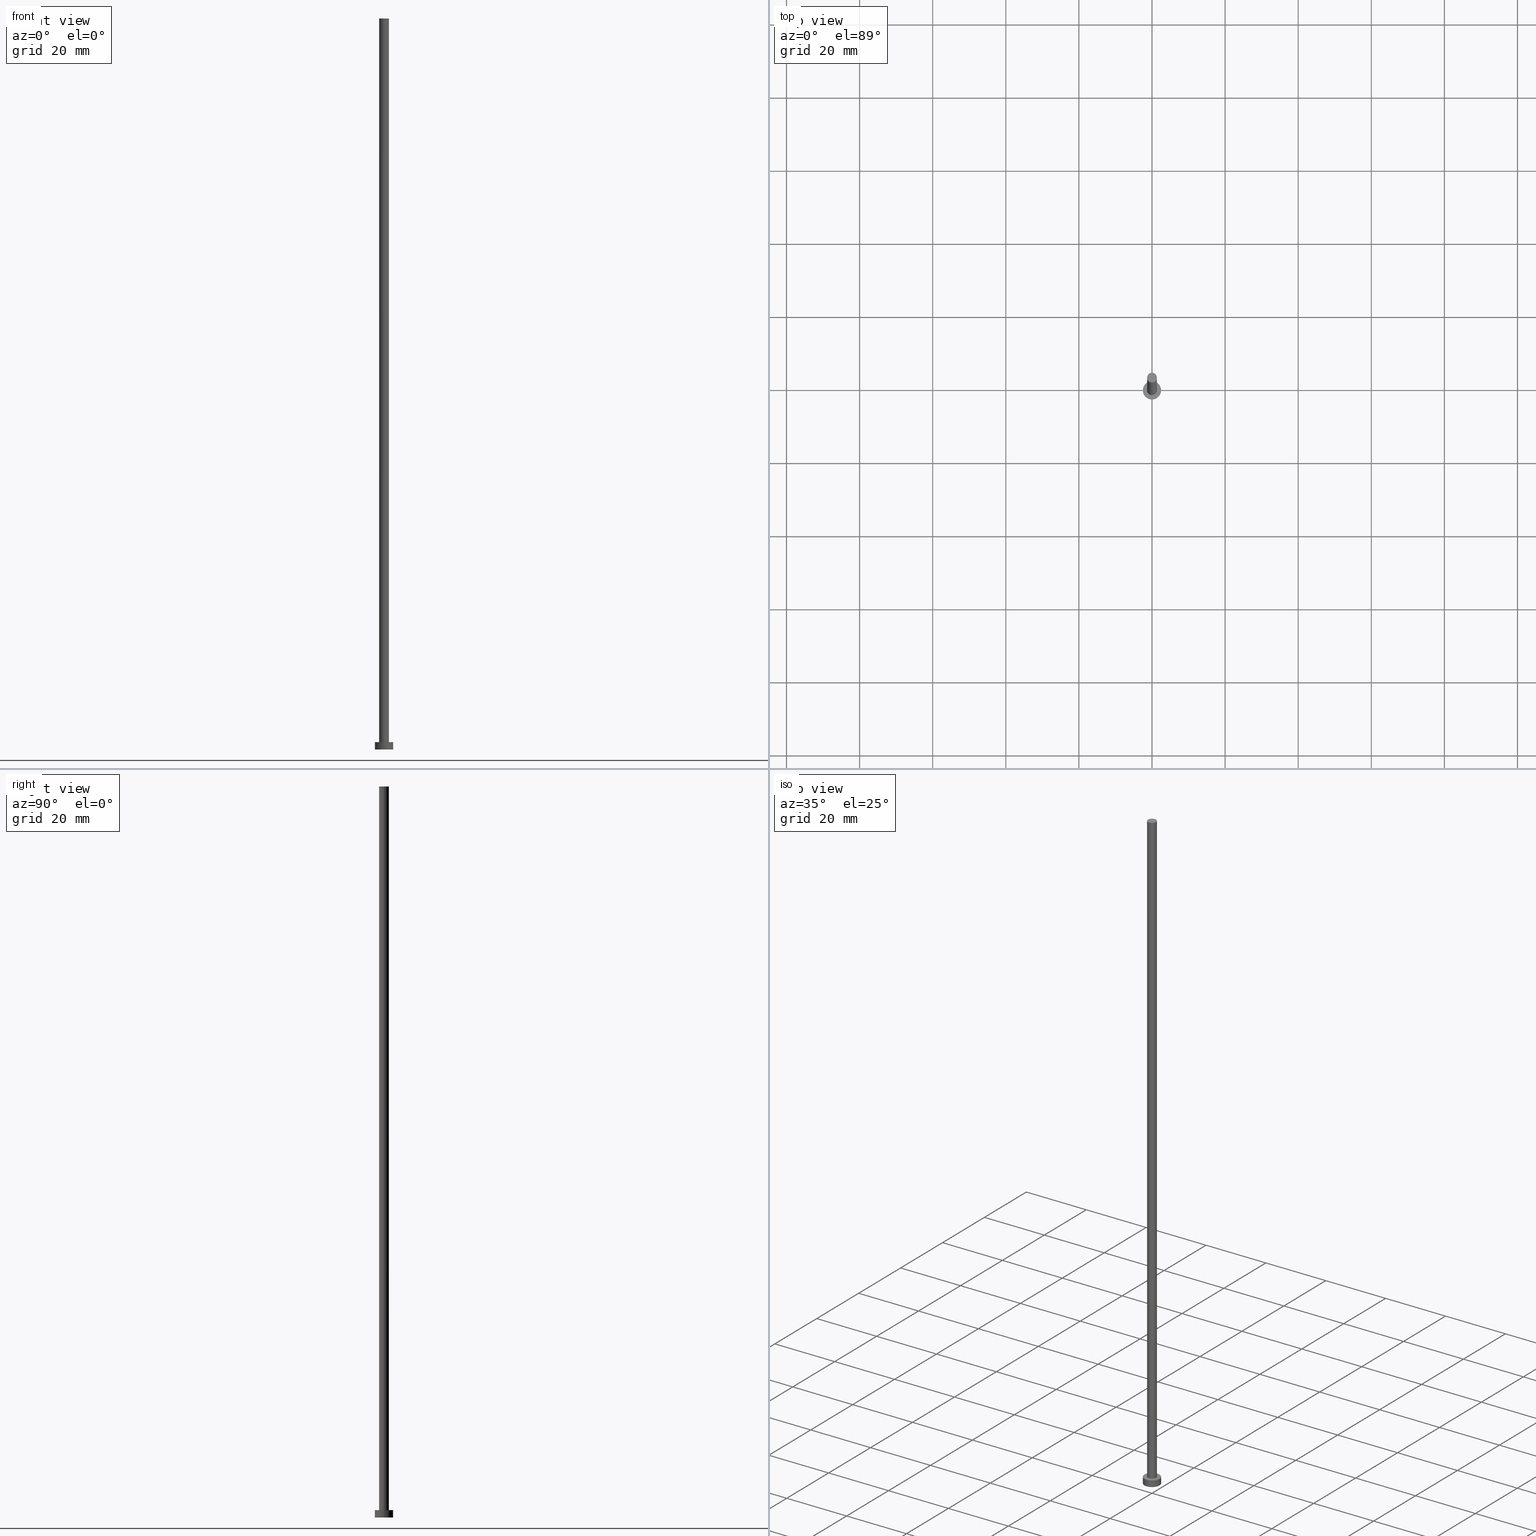
[diagram: canonical four-view strip — front | top / right | iso, engineering-drawing reading convention]
A machine part, canonical four-view strip (front | top / right | iso — engineering-drawing reading convention). The complete STEP part file that produces these views, byte-faithful:
ISO-10303-21;
HEADER;
FILE_DESCRIPTION (( 'STEP AP203' ),
    '1' );
FILE_NAME ('e8c6.STEP',
    '2026-02-06T12:31:08',
    ( '' ),
    ( '' ),
    'SwSTEP 2.0',
    'SolidWorks 2019',
    '' );
FILE_SCHEMA (( 'CONFIG_CONTROL_DESIGN' ));
ENDSEC;

DATA;
#1 = AXIS2_PLACEMENT_3D ( 'NONE', #97, #96, #58 ) ;
#2 = SHAPE_DEFINITION_REPRESENTATION ( #227, #66 ) ;
#3 = DATE_AND_TIME ( #238, #155 ) ;
#4 = VERTEX_POINT ( 'NONE', #50 ) ;
#5 = SECURITY_CLASSIFICATION ( '', '', #186 ) ;
#6 = CARTESIAN_POINT ( 'NONE',  ( -1.350000000000000089, 0.000000000000000000, 2.000000000000000000 ) ) ;
#7 = VERTEX_POINT ( 'NONE', #171 ) ;
#8 = ORIENTED_EDGE ( 'NONE', *, *, #210, .F. ) ;
#9 = PRODUCT ( 'e8c6', 'e8c6', '', ( #134 ) ) ;
#10 = DIRECTION ( 'NONE',  ( 1.000000000000000000, 0.000000000000000000, 0.000000000000000000 ) ) ;
#11 = ORIENTED_EDGE ( 'NONE', *, *, #162, .F. ) ;
#12 = ORIENTED_EDGE ( 'NONE', *, *, #119, .F. ) ;
#13 = CARTESIAN_POINT ( 'NONE',  ( 0.000000000000000000, 0.000000000000000000, 0.000000000000000000 ) ) ;
#14 = FACE_OUTER_BOUND ( 'NONE', #228, .T. ) ;
#15 = CLOSED_SHELL ( 'NONE', ( #255, #163, #157, #231, #108, #145, #127 ) ) ;
#16 = DIRECTION ( 'NONE',  ( 0.000000000000000000, 0.000000000000000000, 1.000000000000000000 ) ) ;
#17 = FACE_OUTER_BOUND ( 'NONE', #248, .T. ) ;
#18 = EDGE_CURVE ( 'NONE', #52, #28, #184, .T. ) ;
#19 = PRODUCT_DEFINITION_FORMATION_WITH_SPECIFIED_SOURCE ( 'LIBOVOLN�', '', #9, .NOT_KNOWN. ) ;
#20 = CIRCLE ( 'NONE', #166, 1.350000000000000089 ) ;
#21 = UNCERTAINTY_MEASURE_WITH_UNIT (LENGTH_MEASURE( 1.000000000000000082E-05 ), #73, 'distance_accuracy_value', 'NONE');
#22 = PERSON_AND_ORGANIZATION ( #218, #39 ) ;
#23 = APPROVAL_PERSON_ORGANIZATION ( #69, #82, #67 ) ;
#24 = COORDINATED_UNIVERSAL_TIME_OFFSET ( 1, 0, .AHEAD. ) ;
#25 = DIRECTION ( 'NONE',  ( 0.000000000000000000, 0.000000000000000000, 1.000000000000000000 ) ) ;
#26 = EDGE_LOOP ( 'NONE', ( #246, #92 ) ) ;
#27 = PLANE ( 'NONE',  #130 ) ;
#28 = VERTEX_POINT ( 'NONE', #207 ) ;
#29 = EDGE_CURVE ( 'NONE', #28, #4, #190, .T. ) ;
#30 = DIRECTION ( 'NONE',  ( 1.000000000000000000, 0.000000000000000000, 0.000000000000000000 ) ) ;
#31 = APPROVAL ( #43, 'NEUR�EN�' ) ;
#32 = CYLINDRICAL_SURFACE ( 'NONE', #219, 1.350000000000000089 ) ;
#33 = CARTESIAN_POINT ( 'NONE',  ( -2.500000000000000000, 0.000000000000000000, 2.000000000000000000 ) ) ;
#34 = AXIS2_PLACEMENT_3D ( 'NONE', #113, #144, #178 ) ;
#35 = CYLINDRICAL_SURFACE ( 'NONE', #34, 2.500000000000000000 ) ;
#36 = CARTESIAN_POINT ( 'NONE',  ( 0.000000000000000000, 0.000000000000000000, 2.000000000000000000 ) ) ;
#37 = CARTESIAN_POINT ( 'NONE',  ( -1.350000000000000089, 0.000000000000000000, 200.0000000000000000 ) ) ;
#38 = AXIS2_PLACEMENT_3D ( 'NONE', #36, #115, #232 ) ;
#39 = ORGANIZATION ( 'NEUR�EN�', 'NEUR�EN�', '' ) ;
#40 = DIRECTION ( 'NONE',  ( -1.000000000000000000, 0.000000000000000000, 0.000000000000000000 ) ) ;
#41 = LOCAL_TIME ( 13, 31, 8.000000000000000000, #124 ) ;
#42 = AXIS2_PLACEMENT_3D ( 'NONE', #152, #251, #30 ) ;
#43 = APPROVAL_STATUS ( 'not_yet_approved' ) ;
#44 = DATE_TIME_ROLE ( 'classification_date' ) ;
#45 = DATE_AND_TIME ( #47, #85 ) ;
#46 = CIRCLE ( 'NONE', #123, 1.350000000000000089 ) ;
#47 = CALENDAR_DATE ( 2026, 6, 2 ) ;
#48 = EDGE_CURVE ( 'NONE', #131, #7, #159, .T. ) ;
#49 = ORIENTED_EDGE ( 'NONE', *, *, #119, .T. ) ;
#50 = CARTESIAN_POINT ( 'NONE',  ( 2.500000000000000000, 3.061616997868383141E-16, 0.000000000000000000 ) ) ;
#51 = FACE_BOUND ( 'NONE', #143, .T. ) ;
#52 = VERTEX_POINT ( 'NONE', #33 ) ;
#53 = DIRECTION ( 'NONE',  ( 1.000000000000000000, 0.000000000000000000, 0.000000000000000000 ) ) ;
#54 = VERTEX_POINT ( 'NONE', #111 ) ;
#55 = CARTESIAN_POINT ( 'NONE',  ( 0.000000000000000000, 0.000000000000000000, 2.000000000000000000 ) ) ;
#56 = ORIENTED_EDGE ( 'NONE', *, *, #241, .T. ) ;
#57 = FACE_OUTER_BOUND ( 'NONE', #70, .T. ) ;
#58 = DIRECTION ( 'NONE',  ( 1.000000000000000000, 0.000000000000000000, 0.000000000000000000 ) ) ;
#59 = AXIS2_PLACEMENT_3D ( 'NONE', #13, #77, #235 ) ;
#60 = CARTESIAN_POINT ( 'NONE',  ( 0.000000000000000000, 0.000000000000000000, 200.0000000000000000 ) ) ;
#61 = DIRECTION ( 'NONE',  ( 1.000000000000000000, 0.000000000000000000, -0.000000000000000000 ) ) ;
#62 = CC_DESIGN_PERSON_AND_ORGANIZATION_ASSIGNMENT ( #174, #168, ( #9 ) ) ;
#63 = CC_DESIGN_PERSON_AND_ORGANIZATION_ASSIGNMENT ( #65, #146, ( #19 ) ) ;
#64 = APPROVAL_DATE_TIME ( #240, #31 ) ;
#65 = PERSON_AND_ORGANIZATION ( #218, #39 ) ;
#66 = ADVANCED_BREP_SHAPE_REPRESENTATION ( 'e8c6', ( #79, #179 ), #234 ) ;
#67 = APPROVAL_ROLE ( '' ) ;
#68 = VECTOR ( 'NONE', #200, 1000.000000000000000 ) ;
#69 = PERSON_AND_ORGANIZATION ( #218, #39 ) ;
#70 = EDGE_LOOP ( 'NONE', ( #149, #49 ) ) ;
#71 = APPLICATION_CONTEXT ( 'configuration controlled 3d designs of mechanical parts and assemblies' ) ;
#72 = ORIENTED_EDGE ( 'NONE', *, *, #237, .F. ) ;
#73 =( LENGTH_UNIT ( ) NAMED_UNIT ( * ) SI_UNIT ( .MILLI., .METRE. ) );
#74 = ORIENTED_EDGE ( 'NONE', *, *, #210, .T. ) ;
#75 = CC_DESIGN_APPROVAL ( #129, ( #5 ) ) ;
#76 = AXIS2_PLACEMENT_3D ( 'NONE', #60, #176, #40 ) ;
#77 = DIRECTION ( 'NONE',  ( 0.000000000000000000, 0.000000000000000000, 1.000000000000000000 ) ) ;
#78 = CARTESIAN_POINT ( 'NONE',  ( 0.000000000000000000, 0.000000000000000000, 2.000000000000000000 ) ) ;
#79 = MANIFOLD_SOLID_BREP ( 'P�idat vysunut�m3', #15 ) ;
#80 = AXIS2_PLACEMENT_3D ( 'NONE', #78, #16, #254 ) ;
#81 = DATE_AND_TIME ( #187, #189 ) ;
#82 = APPROVAL ( #206, 'NEUR�EN�' ) ;
#83 = PERSON_AND_ORGANIZATION ( #218, #39 ) ;
#84 = PLANE ( 'NONE',  #59 ) ;
#85 = LOCAL_TIME ( 13, 31, 8.000000000000000000, #223 ) ;
#86 = CIRCLE ( 'NONE', #1, 2.500000000000000000 ) ;
#87 = DIRECTION ( 'NONE',  ( 1.000000000000000000, 0.000000000000000000, 0.000000000000000000 ) ) ;
#88 = DIRECTION ( 'NONE',  ( -1.000000000000000000, 0.000000000000000000, 0.000000000000000000 ) ) ;
#89 = ORIENTED_EDGE ( 'NONE', *, *, #199, .F. ) ;
#90 =( NAMED_UNIT ( * ) PLANE_ANGLE_UNIT ( ) SI_UNIT ( $, .RADIAN. ) );
#91 = CARTESIAN_POINT ( 'NONE',  ( 2.500000000000000000, 3.061616997868383141E-16, 2.000000000000000000 ) ) ;
#92 = ORIENTED_EDGE ( 'NONE', *, *, #48, .T. ) ;
#93 = CC_DESIGN_DATE_AND_TIME_ASSIGNMENT ( #45, #147, ( #222 ) ) ;
#94 = CARTESIAN_POINT ( 'NONE',  ( 1.350000000000000089, 1.653273178848926867E-16, 2.000000000000000000 ) ) ;
#95 = CARTESIAN_POINT ( 'NONE',  ( 0.000000000000000000, 0.000000000000000000, 200.0000000000000000 ) ) ;
#96 = DIRECTION ( 'NONE',  ( 0.000000000000000000, 0.000000000000000000, 1.000000000000000000 ) ) ;
#97 = CARTESIAN_POINT ( 'NONE',  ( 0.000000000000000000, 0.000000000000000000, 0.000000000000000000 ) ) ;
#98 = EDGE_CURVE ( 'NONE', #7, #131, #46, .T. ) ;
#99 = PERSON_AND_ORGANIZATION_ROLE ( 'classification_officer' ) ;
#100 = VECTOR ( 'NONE', #167, 1000.000000000000000 ) ;
#101 = APPROVAL_ROLE ( '' ) ;
#102 = COORDINATED_UNIVERSAL_TIME_OFFSET ( 1, 0, .AHEAD. ) ;
#103 = FACE_OUTER_BOUND ( 'NONE', #114, .T. ) ;
#104 = PERSON_AND_ORGANIZATION ( #218, #39 ) ;
#105 = AXIS2_PLACEMENT_3D ( 'NONE', #95, #158, #61 ) ;
#106 = ORIENTED_EDGE ( 'NONE', *, *, #29, .T. ) ;
#107 = CC_DESIGN_APPROVAL ( #31, ( #19 ) ) ;
#108 = ADVANCED_FACE ( 'NONE', ( #103 ), #84, .F. ) ;
#109 = VERTEX_POINT ( 'NONE', #94 ) ;
#110 = ORIENTED_EDGE ( 'NONE', *, *, #177, .T. ) ;
#111 = CARTESIAN_POINT ( 'NONE',  ( -2.500000000000000000, 0.000000000000000000, 0.000000000000000000 ) ) ;
#112 = APPLICATION_CONTEXT ( 'configuration controlled 3d designs of mechanical parts and assemblies' ) ;
#113 = CARTESIAN_POINT ( 'NONE',  ( 0.000000000000000000, 0.000000000000000000, 2.000000000000000000 ) ) ;
#114 = EDGE_LOOP ( 'NONE', ( #8, #11 ) ) ;
#115 = DIRECTION ( 'NONE',  ( -0.000000000000000000, -0.000000000000000000, -1.000000000000000000 ) ) ;
#116 = ORIENTED_EDGE ( 'NONE', *, *, #237, .T. ) ;
#117 = LINE ( 'NONE', #37, #239 ) ;
#118 = PRODUCT_RELATED_PRODUCT_CATEGORY ( 'detail', '', ( #9 ) ) ;
#119 = EDGE_CURVE ( 'NONE', #28, #52, #196, .T. ) ;
#120 = APPROVAL_PERSON_ORGANIZATION ( #83, #129, #225 ) ;
#121 = DATE_AND_TIME ( #164, #41 ) ;
#122 = PERSON_AND_ORGANIZATION_ROLE ( 'creator' ) ;
#123 = AXIS2_PLACEMENT_3D ( 'NONE', #205, #25, #197 ) ;
#124 = COORDINATED_UNIVERSAL_TIME_OFFSET ( 1, 0, .AHEAD. ) ;
#125 = DIRECTION ( 'NONE',  ( 1.000000000000000000, 0.000000000000000000, 0.000000000000000000 ) ) ;
#126 = CARTESIAN_POINT ( 'NONE',  ( 0.000000000000000000, 0.000000000000000000, 2.000000000000000000 ) ) ;
#127 = ADVANCED_FACE ( 'NONE', ( #141 ), #156, .T. ) ;
#128 = DIRECTION ( 'NONE',  ( 0.000000000000000000, 0.000000000000000000, 1.000000000000000000 ) ) ;
#129 = APPROVAL ( #243, 'NEUR�EN�' ) ;
#130 = AXIS2_PLACEMENT_3D ( 'NONE', #252, #191, #172 ) ;
#131 = VERTEX_POINT ( 'NONE', #138 ) ;
#132 = DIRECTION ( 'NONE',  ( 1.000000000000000000, 0.000000000000000000, 0.000000000000000000 ) ) ;
#133 = ORIENTED_EDGE ( 'NONE', *, *, #201, .T. ) ;
#134 = MECHANICAL_CONTEXT ( 'NONE', #71, 'mechanical' ) ;
#135 = ORIENTED_EDGE ( 'NONE', *, *, #48, .F. ) ;
#136 = CC_DESIGN_PERSON_AND_ORGANIZATION_ASSIGNMENT ( #104, #99, ( #5 ) ) ;
#137 = FACE_OUTER_BOUND ( 'NONE', #194, .T. ) ;
#138 = CARTESIAN_POINT ( 'NONE',  ( 1.350000000000000089, 1.653273178848926867E-16, 200.0000000000000000 ) ) ;
#139 = CC_DESIGN_APPROVAL ( #82, ( #222 ) ) ;
#140 = CIRCLE ( 'NONE', #151, 2.500000000000000000 ) ;
#141 = FACE_OUTER_BOUND ( 'NONE', #26, .T. ) ;
#142 = CARTESIAN_POINT ( 'NONE',  ( 1.350000000000000089, 1.653273178848926867E-16, 200.0000000000000000 ) ) ;
#143 = EDGE_LOOP ( 'NONE', ( #211, #72 ) ) ;
#144 = DIRECTION ( 'NONE',  ( -0.000000000000000000, -0.000000000000000000, -1.000000000000000000 ) ) ;
#145 = ADVANCED_FACE ( 'NONE', ( #17 ), #181, .T. ) ;
#146 = PERSON_AND_ORGANIZATION_ROLE ( 'design_supplier' ) ;
#147 = DATE_TIME_ROLE ( 'creation_date' ) ;
#148 = ORIENTED_EDGE ( 'NONE', *, *, #201, .F. ) ;
#149 = ORIENTED_EDGE ( 'NONE', *, *, #18, .T. ) ;
#150 = CARTESIAN_POINT ( 'NONE',  ( 0.000000000000000000, 0.000000000000000000, 2.000000000000000000 ) ) ;
#151 = AXIS2_PLACEMENT_3D ( 'NONE', #230, #170, #53 ) ;
#152 = CARTESIAN_POINT ( 'NONE',  ( 0.000000000000000000, 0.000000000000000000, 200.0000000000000000 ) ) ;
#153 = CARTESIAN_POINT ( 'NONE',  ( 0.000000000000000000, 0.000000000000000000, 200.0000000000000000 ) ) ;
#154 = ORIENTED_EDGE ( 'NONE', *, *, #199, .T. ) ;
#155 = LOCAL_TIME ( 13, 31, 8.000000000000000000, #102 ) ;
#156 = PLANE ( 'NONE',  #105 ) ;
#157 = ADVANCED_FACE ( 'NONE', ( #216 ), #215, .T. ) ;
#158 = DIRECTION ( 'NONE',  ( 0.000000000000000000, 0.000000000000000000, 1.000000000000000000 ) ) ;
#159 = CIRCLE ( 'NONE', #42, 1.350000000000000089 ) ;
#160 = AXIS2_PLACEMENT_3D ( 'NONE', #126, #212, #125 ) ;
#161 = APPROVAL_DATE_TIME ( #3, #82 ) ;
#162 = EDGE_CURVE ( 'NONE', #4, #54, #86, .T. ) ;
#163 = ADVANCED_FACE ( 'NONE', ( #14 ), #35, .T. ) ;
#164 = CALENDAR_DATE ( 2026, 6, 2 ) ;
#165 = LOCAL_TIME ( 13, 31, 8.000000000000000000, #245 ) ;
#166 = AXIS2_PLACEMENT_3D ( 'NONE', #55, #249, #132 ) ;
#167 = DIRECTION ( 'NONE',  ( -0.000000000000000000, -0.000000000000000000, -1.000000000000000000 ) ) ;
#168 = PERSON_AND_ORGANIZATION_ROLE ( 'design_owner' ) ;
#169 = ORIENTED_EDGE ( 'NONE', *, *, #29, .F. ) ;
#170 = DIRECTION ( 'NONE',  ( 0.000000000000000000, 0.000000000000000000, 1.000000000000000000 ) ) ;
#171 = CARTESIAN_POINT ( 'NONE',  ( -1.350000000000000089, 0.000000000000000000, 200.0000000000000000 ) ) ;
#172 = DIRECTION ( 'NONE',  ( 1.000000000000000000, 0.000000000000000000, -0.000000000000000000 ) ) ;
#173 = ORIENTED_EDGE ( 'NONE', *, *, #177, .F. ) ;
#174 = PERSON_AND_ORGANIZATION ( #218, #39 ) ;
#175 = ORIENTED_EDGE ( 'NONE', *, *, #18, .F. ) ;
#176 = DIRECTION ( 'NONE',  ( -0.000000000000000000, -0.000000000000000000, -1.000000000000000000 ) ) ;
#177 = EDGE_CURVE ( 'NONE', #131, #109, #214, .T. ) ;
#178 = DIRECTION ( 'NONE',  ( -1.000000000000000000, 0.000000000000000000, 0.000000000000000000 ) ) ;
#179 = AXIS2_PLACEMENT_3D ( 'NONE', #195, #188, #87 ) ;
#180 = DIRECTION ( 'NONE',  ( -0.000000000000000000, -0.000000000000000000, -1.000000000000000000 ) ) ;
#181 = CYLINDRICAL_SURFACE ( 'NONE', #76, 1.350000000000000089 ) ;
#182 = DESIGN_CONTEXT ( 'detailed design', #112, 'design' ) ;
#183 = VECTOR ( 'NONE', #180, 1000.000000000000000 ) ;
#184 = CIRCLE ( 'NONE', #160, 2.500000000000000000 ) ;
#185 = PERSON_AND_ORGANIZATION ( #218, #39 ) ;
#186 = SECURITY_CLASSIFICATION_LEVEL ( 'unclassified' ) ;
#187 = CALENDAR_DATE ( 2026, 6, 2 ) ;
#188 = DIRECTION ( 'NONE',  ( 0.000000000000000000, 0.000000000000000000, 1.000000000000000000 ) ) ;
#189 = LOCAL_TIME ( 13, 31, 8.000000000000000000, #24 ) ;
#190 = LINE ( 'NONE', #91, #100 ) ;
#191 = DIRECTION ( 'NONE',  ( 0.000000000000000000, 0.000000000000000000, 1.000000000000000000 ) ) ;
#192 = ORIENTED_EDGE ( 'NONE', *, *, #98, .F. ) ;
#193 = APPLICATION_PROTOCOL_DEFINITION ( 'international standard', 'config_control_design', 1994, #71 ) ;
#194 = EDGE_LOOP ( 'NONE', ( #135, #110, #116, #89 ) ) ;
#195 = CARTESIAN_POINT ( 'NONE',  ( 0.000000000000000000, 0.000000000000000000, 0.000000000000000000 ) ) ;
#196 = CIRCLE ( 'NONE', #80, 2.500000000000000000 ) ;
#197 = DIRECTION ( 'NONE',  ( 1.000000000000000000, 0.000000000000000000, 0.000000000000000000 ) ) ;
#198 = DIRECTION ( 'NONE',  ( -0.000000000000000000, -0.000000000000000000, -1.000000000000000000 ) ) ;
#199 = EDGE_CURVE ( 'NONE', #7, #229, #117, .T. ) ;
#200 = DIRECTION ( 'NONE',  ( -0.000000000000000000, -0.000000000000000000, -1.000000000000000000 ) ) ;
#201 = EDGE_CURVE ( 'NONE', #52, #54, #236, .T. ) ;
#202 = APPROVAL_DATE_TIME ( #81, #129 ) ;
#203 = PERSON_AND_ORGANIZATION ( #218, #39 ) ;
#204 = CC_DESIGN_DATE_AND_TIME_ASSIGNMENT ( #121, #44, ( #5 ) ) ;
#205 = CARTESIAN_POINT ( 'NONE',  ( 0.000000000000000000, 0.000000000000000000, 200.0000000000000000 ) ) ;
#206 = APPROVAL_STATUS ( 'not_yet_approved' ) ;
#207 = CARTESIAN_POINT ( 'NONE',  ( 2.500000000000000000, 3.061616997868383141E-16, 2.000000000000000000 ) ) ;
#208 = DIRECTION ( 'NONE',  ( -0.000000000000000000, -0.000000000000000000, -1.000000000000000000 ) ) ;
#209 = EDGE_LOOP ( 'NONE', ( #169, #175, #133, #74 ) ) ;
#210 = EDGE_CURVE ( 'NONE', #54, #4, #140, .T. ) ;
#211 = ORIENTED_EDGE ( 'NONE', *, *, #241, .F. ) ;
#212 = DIRECTION ( 'NONE',  ( 0.000000000000000000, 0.000000000000000000, 1.000000000000000000 ) ) ;
#213 = CIRCLE ( 'NONE', #244, 1.350000000000000089 ) ;
#214 = LINE ( 'NONE', #142, #183 ) ;
#215 = CYLINDRICAL_SURFACE ( 'NONE', #38, 2.500000000000000000 ) ;
#216 = FACE_OUTER_BOUND ( 'NONE', #209, .T. ) ;
#217 = CARTESIAN_POINT ( 'NONE',  ( -2.500000000000000000, 0.000000000000000000, 2.000000000000000000 ) ) ;
#218 = PERSON ( 'NEUR�EN�', 'NEUR�EN�', 'NEUR�EN�', ('NEUR�EN�'), ('NEUR�EN�'), ('NEUR�EN�') ) ;
#219 = AXIS2_PLACEMENT_3D ( 'NONE', #153, #208, #88 ) ;
#220 = CC_DESIGN_SECURITY_CLASSIFICATION ( #5, ( #19 ) ) ;
#221 = PERSON_AND_ORGANIZATION_ROLE ( 'creator' ) ;
#222 = PRODUCT_DEFINITION ( 'NEZN�M�', '', #19, #182 ) ;
#223 = COORDINATED_UNIVERSAL_TIME_OFFSET ( 1, 0, .AHEAD. ) ;
#224 = CALENDAR_DATE ( 2026, 6, 2 ) ;
#225 = APPROVAL_ROLE ( '' ) ;
#226 = ORIENTED_EDGE ( 'NONE', *, *, #162, .T. ) ;
#227 = PRODUCT_DEFINITION_SHAPE ( 'NONE', 'NONE',  #222 ) ;
#228 = EDGE_LOOP ( 'NONE', ( #12, #106, #226, #148 ) ) ;
#229 = VERTEX_POINT ( 'NONE', #6 ) ;
#230 = CARTESIAN_POINT ( 'NONE',  ( 0.000000000000000000, 0.000000000000000000, 0.000000000000000000 ) ) ;
#231 = ADVANCED_FACE ( 'NONE', ( #51, #57 ), #27, .T. ) ;
#232 = DIRECTION ( 'NONE',  ( -1.000000000000000000, 0.000000000000000000, 0.000000000000000000 ) ) ;
#233 = APPROVAL_PERSON_ORGANIZATION ( #203, #31, #101 ) ;
#234 =( GEOMETRIC_REPRESENTATION_CONTEXT ( 3 ) GLOBAL_UNCERTAINTY_ASSIGNED_CONTEXT ( ( #21 ) ) GLOBAL_UNIT_ASSIGNED_CONTEXT ( ( #73, #90, #250 ) ) REPRESENTATION_CONTEXT ( 'NONE', 'WORKASPACE' ) );
#235 = DIRECTION ( 'NONE',  ( 1.000000000000000000, 0.000000000000000000, -0.000000000000000000 ) ) ;
#236 = LINE ( 'NONE', #217, #68 ) ;
#237 = EDGE_CURVE ( 'NONE', #109, #229, #213, .T. ) ;
#238 = CALENDAR_DATE ( 2026, 6, 2 ) ;
#239 = VECTOR ( 'NONE', #198, 1000.000000000000000 ) ;
#240 = DATE_AND_TIME ( #224, #165 ) ;
#241 = EDGE_CURVE ( 'NONE', #229, #109, #20, .T. ) ;
#242 = CC_DESIGN_PERSON_AND_ORGANIZATION_ASSIGNMENT ( #22, #221, ( #19 ) ) ;
#243 = APPROVAL_STATUS ( 'not_yet_approved' ) ;
#244 = AXIS2_PLACEMENT_3D ( 'NONE', #150, #128, #10 ) ;
#245 = COORDINATED_UNIVERSAL_TIME_OFFSET ( 1, 0, .AHEAD. ) ;
#246 = ORIENTED_EDGE ( 'NONE', *, *, #98, .T. ) ;
#247 = APPLICATION_PROTOCOL_DEFINITION ( 'international standard', 'config_control_design', 1994, #112 ) ;
#248 = EDGE_LOOP ( 'NONE', ( #173, #192, #154, #56 ) ) ;
#249 = DIRECTION ( 'NONE',  ( 0.000000000000000000, 0.000000000000000000, 1.000000000000000000 ) ) ;
#250 =( NAMED_UNIT ( * ) SI_UNIT ( $, .STERADIAN. ) SOLID_ANGLE_UNIT ( ) );
#251 = DIRECTION ( 'NONE',  ( 0.000000000000000000, 0.000000000000000000, 1.000000000000000000 ) ) ;
#252 = CARTESIAN_POINT ( 'NONE',  ( 0.000000000000000000, 0.000000000000000000, 2.000000000000000000 ) ) ;
#253 = CC_DESIGN_PERSON_AND_ORGANIZATION_ASSIGNMENT ( #185, #122, ( #222 ) ) ;
#254 = DIRECTION ( 'NONE',  ( 1.000000000000000000, 0.000000000000000000, 0.000000000000000000 ) ) ;
#255 = ADVANCED_FACE ( 'NONE', ( #137 ), #32, .T. ) ;
ENDSEC;
END-ISO-10303-21;
